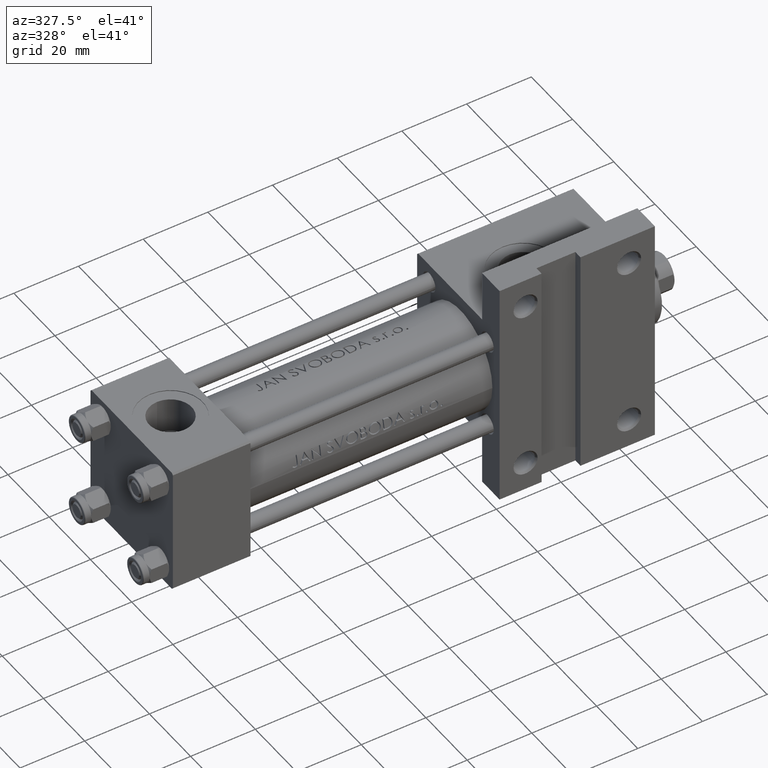
[diagram: clean part render]
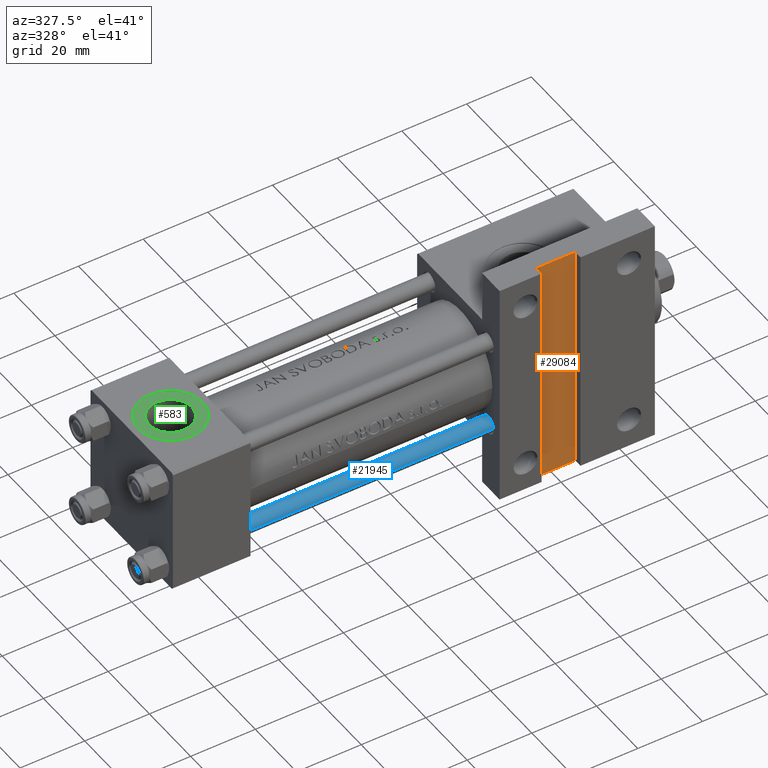
[diagram: same view with three faces highlighted in distinct colors, each labeled with its STEP entity id]
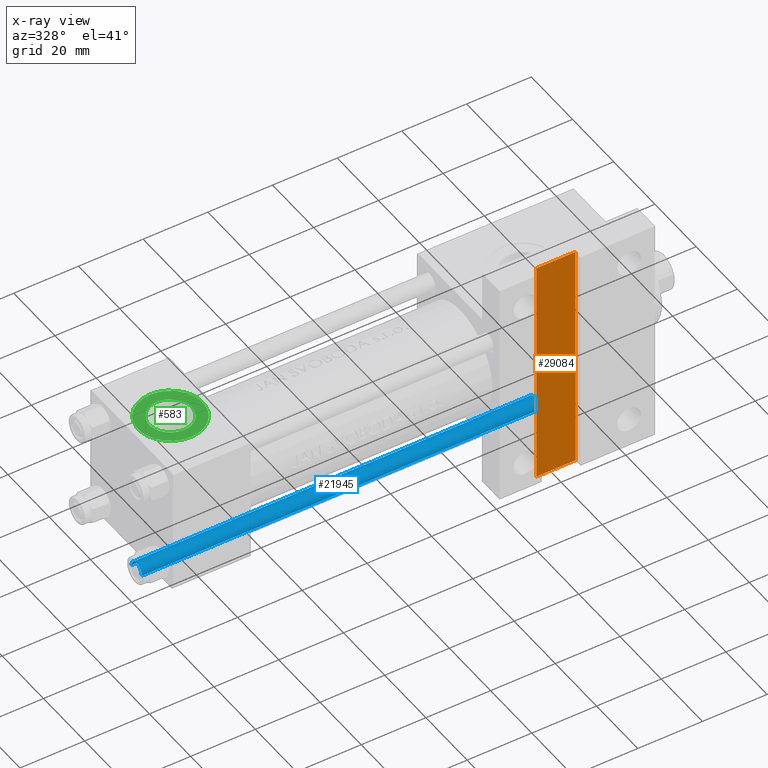
[diagram: x-ray of the same camera — body ghosted, the three highlighted faces saturated]
A machine part, auxiliary view with three faces highlighted in distinct colors.
The next image is the same camera in x-ray (body ghosted, the three faces saturated) — at least one of them is partly hidden behind the body in this view.
Their STEP definitions:

[orange] entity #29084 — the highlighted planar face has unit normal (0, -1, 0).
#2867 = ORIENTED_EDGE ( 'NONE', *, *, #39529, .T. ) ;
#3045 = ORIENTED_EDGE ( 'NONE', *, *, #22700, .T. ) ;
#3519 = DIRECTION ( 'NONE',  ( -1.000000000000000000, 0.000000000000000000, -0.000000000000000000 ) ) ;
#3986 = FACE_OUTER_BOUND ( 'NONE', #29829, .T. ) ;
#4452 = CARTESIAN_POINT ( 'NONE',  ( 113.9999999999999574, -35.99999999999997868, -17.50000000000000000 ) ) ;
#6316 = ORIENTED_EDGE ( 'NONE', *, *, #28720, .T. ) ;
#6941 = LINE ( 'NONE', #46945, #36106 ) ;
#8400 = ORIENTED_EDGE ( 'NONE', *, *, #41337, .T. ) ;
#11077 = VERTEX_POINT ( 'NONE', #21097 ) ;
#11744 = DIRECTION ( 'NONE',  ( 1.000000000000000000, 0.000000000000000000, 0.000000000000000000 ) ) ;
#15626 = VECTOR ( 'NONE', #33116, 1000.000000000000000 ) ;
#18549 = VECTOR ( 'NONE', #11744, 1000.000000000000000 ) ;
#18736 = CARTESIAN_POINT ( 'NONE',  ( 113.9999999999999574, 35.99999999999998579, -17.50000000000000000 ) ) ;
#20820 = DIRECTION ( 'NONE',  ( -0.000000000000000000, -1.000000000000000000, -0.000000000000000000 ) ) ;
#21097 = CARTESIAN_POINT ( 'NONE',  ( 113.9999999999999574, 35.99999999999998579, -17.50000000000000000 ) ) ;
#22700 = EDGE_CURVE ( 'NONE', #11077, #45880, #44763, .T. ) ;
#22981 = LINE ( 'NONE', #4452, #15626 ) ;
#28413 = AXIS2_PLACEMENT_3D ( 'NONE', #40381, #36513, #3519 ) ;
#28720 = EDGE_CURVE ( 'NONE', #38106, #11077, #6941, .T. ) ;
#28757 = CARTESIAN_POINT ( 'NONE',  ( 125.9999999999999716, -35.99999999999997868, -17.50000000000000000 ) ) ;
#29084 = ADVANCED_FACE ( 'NONE', ( #3986 ), #44692, .T. ) ;
#29829 = EDGE_LOOP ( 'NONE', ( #2867, #8400, #6316, #3045 ) ) ;
#32704 = DIRECTION ( 'NONE',  ( 0.000000000000000000, 1.000000000000000000, 0.000000000000000000 ) ) ;
#33116 = DIRECTION ( 'NONE',  ( -1.000000000000000000, -0.000000000000000000, -0.000000000000000000 ) ) ;
#33987 = CARTESIAN_POINT ( 'NONE',  ( 125.9999999999999716, -36.00000000000000711, -17.50000000000000000 ) ) ;
#36001 = LINE ( 'NONE', #28757, #40958 ) ;
#36106 = VECTOR ( 'NONE', #32704, 1000.000000000000000 ) ;
#36513 = DIRECTION ( 'NONE',  ( 0.000000000000000000, 0.000000000000000000, -1.000000000000000000 ) ) ;
#38106 = VERTEX_POINT ( 'NONE', #38910 ) ;
#38910 = CARTESIAN_POINT ( 'NONE',  ( 113.9999999999999574, -35.99999999999997868, -17.50000000000000000 ) ) ;
#39529 = EDGE_CURVE ( 'NONE', #45880, #46593, #36001, .T. ) ;
#40381 = CARTESIAN_POINT ( 'NONE',  ( 0.000000000000000000, 0.000000000000000000, -17.50000000000000000 ) ) ;
#40958 = VECTOR ( 'NONE', #20820, 1000.000000000000000 ) ;
#41337 = EDGE_CURVE ( 'NONE', #46593, #38106, #22981, .T. ) ;
#43242 = CARTESIAN_POINT ( 'NONE',  ( 125.9999999999999716, 35.99999999999998579, -17.50000000000000000 ) ) ;
#44692 = PLANE ( 'NONE',  #28413 ) ;
#44763 = LINE ( 'NONE', #18736, #18549 ) ;
#45880 = VERTEX_POINT ( 'NONE', #43242 ) ;
#46593 = VERTEX_POINT ( 'NONE', #33987 ) ;
#46945 = CARTESIAN_POINT ( 'NONE',  ( 113.9999999999999574, -35.99999999999997868, -17.50000000000000000 ) ) ;

[blue] entity #21945 — the highlighted cylindrical surface (edge-blend (fillet) strip) has radius 2.5 mm, axis along (1, 0, 0).
#218 = ORIENTED_EDGE ( 'NONE', *, *, #17635, .T. ) ;
#856 = FACE_OUTER_BOUND ( 'NONE', #37524, .T. ) ;
#1894 = CIRCLE ( 'NONE', #15693, 2.500000000000000000 ) ;
#3890 = CARTESIAN_POINT ( 'NONE',  ( 0.000000000000000000, 0.000000000000000000, 123.5000000000000000 ) ) ;
#4367 = DIRECTION ( 'NONE',  ( -0.000000000000000000, -0.000000000000000000, -1.000000000000000000 ) ) ;
#4404 = VERTEX_POINT ( 'NONE', #39976 ) ;
#8818 = ORIENTED_EDGE ( 'NONE', *, *, #43684, .T. ) ;
#9226 = VERTEX_POINT ( 'NONE', #29516 ) ;
#10076 = VERTEX_POINT ( 'NONE', #40394 ) ;
#11453 = EDGE_CURVE ( 'NONE', #31754, #4404, #13245, .T. ) ;
#11602 = CARTESIAN_POINT ( 'NONE',  ( -2.500000000000000000, 0.000000000000000000, 123.5000000000000000 ) ) ;
#11757 = DIRECTION ( 'NONE',  ( 1.000000000000000000, 0.000000000000000000, 0.000000000000000000 ) ) ;
#11995 = CARTESIAN_POINT ( 'NONE',  ( 0.000000000000000000, 0.000000000000000000, 0.5000000000000004441 ) ) ;
#13245 = CIRCLE ( 'NONE', #41738, 2.500000000000000000 ) ;
#15526 = CARTESIAN_POINT ( 'NONE',  ( 0.000000000000000000, 0.000000000000000000, 124.0000000000000000 ) ) ;
#15693 = AXIS2_PLACEMENT_3D ( 'NONE', #11995, #37310, #11757 ) ;
#17635 = EDGE_CURVE ( 'NONE', #4404, #9226, #40758, .T. ) ;
#18304 = ORIENTED_EDGE ( 'NONE', *, *, #44842, .F. ) ;
#18328 = DIRECTION ( 'NONE',  ( 1.000000000000000000, 0.000000000000000000, 0.000000000000000000 ) ) ;
#19398 = LINE ( 'NONE', #37255, #31129 ) ;
#19854 = CYLINDRICAL_SURFACE ( 'NONE', #25461, 2.500000000000000000 ) ;
#21945 = ADVANCED_FACE ( 'NONE', ( #856 ), #19854, .T. ) ;
#25461 = AXIS2_PLACEMENT_3D ( 'NONE', #15526, #30215, #34550 ) ;
#25628 = VECTOR ( 'NONE', #4367, 1000.000000000000000 ) ;
#29516 = CARTESIAN_POINT ( 'NONE',  ( 2.500000000000000000, 3.061616997868383141E-16, 0.5000000000000004441 ) ) ;
#30215 = DIRECTION ( 'NONE',  ( -0.000000000000000000, -0.000000000000000000, -1.000000000000000000 ) ) ;
#31129 = VECTOR ( 'NONE', #34104, 1000.000000000000000 ) ;
#31754 = VERTEX_POINT ( 'NONE', #11602 ) ;
#34104 = DIRECTION ( 'NONE',  ( -0.000000000000000000, -0.000000000000000000, -1.000000000000000000 ) ) ;
#34550 = DIRECTION ( 'NONE',  ( -1.000000000000000000, 0.000000000000000000, 0.000000000000000000 ) ) ;
#37255 = CARTESIAN_POINT ( 'NONE',  ( -2.500000000000000000, 0.000000000000000000, 124.0000000000000000 ) ) ;
#37310 = DIRECTION ( 'NONE',  ( -0.000000000000000000, -0.000000000000000000, 1.000000000000000000 ) ) ;
#37524 = EDGE_LOOP ( 'NONE', ( #42911, #218, #8818, #18304 ) ) ;
#39976 = CARTESIAN_POINT ( 'NONE',  ( 2.500000000000000000, 3.061616997868383141E-16, 123.5000000000000000 ) ) ;
#40394 = CARTESIAN_POINT ( 'NONE',  ( -2.500000000000000000, 0.000000000000000000, 0.5000000000000004441 ) ) ;
#40752 = DIRECTION ( 'NONE',  ( 0.000000000000000000, 0.000000000000000000, -1.000000000000000000 ) ) ;
#40758 = LINE ( 'NONE', #44606, #25628 ) ;
#41738 = AXIS2_PLACEMENT_3D ( 'NONE', #3890, #40752, #18328 ) ;
#42911 = ORIENTED_EDGE ( 'NONE', *, *, #11453, .T. ) ;
#43684 = EDGE_CURVE ( 'NONE', #9226, #10076, #1894, .T. ) ;
#44606 = CARTESIAN_POINT ( 'NONE',  ( 2.500000000000000000, 3.061616997868383141E-16, 124.0000000000000000 ) ) ;
#44842 = EDGE_CURVE ( 'NONE', #31754, #10076, #19398, .T. ) ;

[green] entity #583 — the highlighted planar face has unit normal (0, -0, 1).
#541 = FACE_OUTER_BOUND ( 'NONE', #9373, .T. ) ;
#571 = AXIS2_PLACEMENT_3D ( 'NONE', #40533, #41003, #32801 ) ;
#583 = ADVANCED_FACE ( 'NONE', ( #10651, #541 ), #25810, .T. ) ;
#1027 = VERTEX_POINT ( 'NONE', #8876 ) ;
#3303 = CIRCLE ( 'NONE', #15601, 6.579999999999998295 ) ;
#5603 = AXIS2_PLACEMENT_3D ( 'NONE', #28591, #10296, #6677 ) ;
#6677 = DIRECTION ( 'NONE',  ( 0.000000000000000000, 0.000000000000000000, -1.000000000000000000 ) ) ;
#7716 = CARTESIAN_POINT ( 'NONE',  ( 12.00000000000000000, -19.80000000000000426, -6.580000000000000071 ) ) ;
#8689 = VERTEX_POINT ( 'NONE', #21144 ) ;
#8712 = ORIENTED_EDGE ( 'NONE', *, *, #40257, .T. ) ;
#8876 = CARTESIAN_POINT ( 'NONE',  ( 12.00000000000000000, -19.80000000000000426, 6.579999999999996518 ) ) ;
#9373 = EDGE_LOOP ( 'NONE', ( #8712, #46889 ) ) ;
#9971 = DIRECTION ( 'NONE',  ( 0.000000000000000000, -1.000000000000000000, -8.673617379884036705E-17 ) ) ;
#10296 = DIRECTION ( 'NONE',  ( 0.000000000000000000, -1.000000000000000000, -8.673617379884036705E-17 ) ) ;
#10651 = FACE_BOUND ( 'NONE', #26183, .T. ) ;
#11157 = CARTESIAN_POINT ( 'NONE',  ( 12.00000000000000000, -19.80000000000000426, -1.717376241217039812E-15 ) ) ;
#13157 = AXIS2_PLACEMENT_3D ( 'NONE', #11157, #17905, #25841 ) ;
#15601 = AXIS2_PLACEMENT_3D ( 'NONE', #15969, #16449, #31133 ) ;
#15969 = CARTESIAN_POINT ( 'NONE',  ( 12.00000000000000000, -19.80000000000000426, -1.717376241217039812E-15 ) ) ;
#16449 = DIRECTION ( 'NONE',  ( 0.000000000000000000, -1.000000000000000000, -8.673617379884036705E-17 ) ) ;
#17460 = EDGE_CURVE ( 'NONE', #1027, #42907, #3303, .T. ) ;
#17905 = DIRECTION ( 'NONE',  ( 0.000000000000000000, -1.000000000000000000, -8.673617379884036705E-17 ) ) ;
#19008 = VERTEX_POINT ( 'NONE', #19962 ) ;
#19962 = CARTESIAN_POINT ( 'NONE',  ( 12.00000000000000000, -19.80000000000000426, -9.999999999999998224 ) ) ;
#21116 = ORIENTED_EDGE ( 'NONE', *, *, #32712, .F. ) ;
#21144 = CARTESIAN_POINT ( 'NONE',  ( 12.00000000000000178, -19.80000000000000426, 9.999999999999994671 ) ) ;
#21267 = CARTESIAN_POINT ( 'NONE',  ( 12.00000000000000000, -19.80000000000000426, -1.717376241217039812E-15 ) ) ;
#24648 = DIRECTION ( 'NONE',  ( 0.000000000000000000, 0.000000000000000000, -1.000000000000000000 ) ) ;
#25810 = PLANE ( 'NONE',  #571 ) ;
#25841 = DIRECTION ( 'NONE',  ( 0.000000000000000000, 0.000000000000000000, -1.000000000000000000 ) ) ;
#26183 = EDGE_LOOP ( 'NONE', ( #21116, #29032 ) ) ;
#28591 = CARTESIAN_POINT ( 'NONE',  ( 12.00000000000000000, -19.80000000000000426, -1.717376241217039812E-15 ) ) ;
#29032 = ORIENTED_EDGE ( 'NONE', *, *, #17460, .F. ) ;
#31133 = DIRECTION ( 'NONE',  ( 0.000000000000000000, 0.000000000000000000, -1.000000000000000000 ) ) ;
#32712 = EDGE_CURVE ( 'NONE', #42907, #1027, #33927, .T. ) ;
#32801 = DIRECTION ( 'NONE',  ( 0.000000000000000000, 8.673617379884036705E-17, -1.000000000000000000 ) ) ;
#33927 = CIRCLE ( 'NONE', #13157, 6.579999999999998295 ) ;
#35621 = CIRCLE ( 'NONE', #5603, 9.999999999999996447 ) ;
#36440 = CIRCLE ( 'NONE', #45707, 9.999999999999996447 ) ;
#40257 = EDGE_CURVE ( 'NONE', #19008, #8689, #35621, .T. ) ;
#40533 = CARTESIAN_POINT ( 'NONE',  ( 12.00000000000000000, -19.80000000000000426, -1.717376241217039812E-15 ) ) ;
#41003 = DIRECTION ( 'NONE',  ( 0.000000000000000000, -1.000000000000000000, -8.673617379884036705E-17 ) ) ;
#42416 = EDGE_CURVE ( 'NONE', #8689, #19008, #36440, .T. ) ;
#42907 = VERTEX_POINT ( 'NONE', #7716 ) ;
#45707 = AXIS2_PLACEMENT_3D ( 'NONE', #21267, #9971, #24648 ) ;
#46889 = ORIENTED_EDGE ( 'NONE', *, *, #42416, .T. ) ;